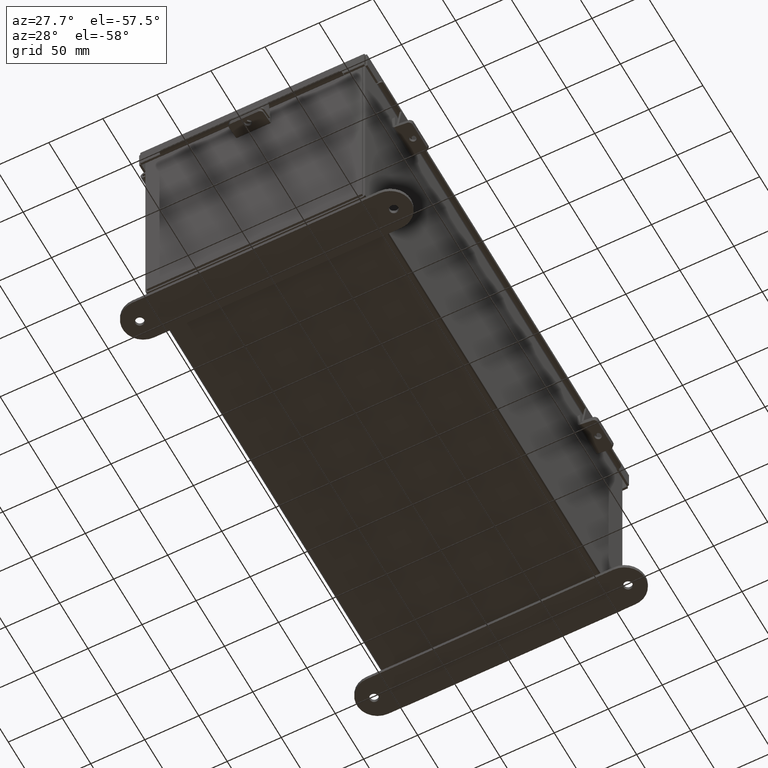
[diagram: clean part render]
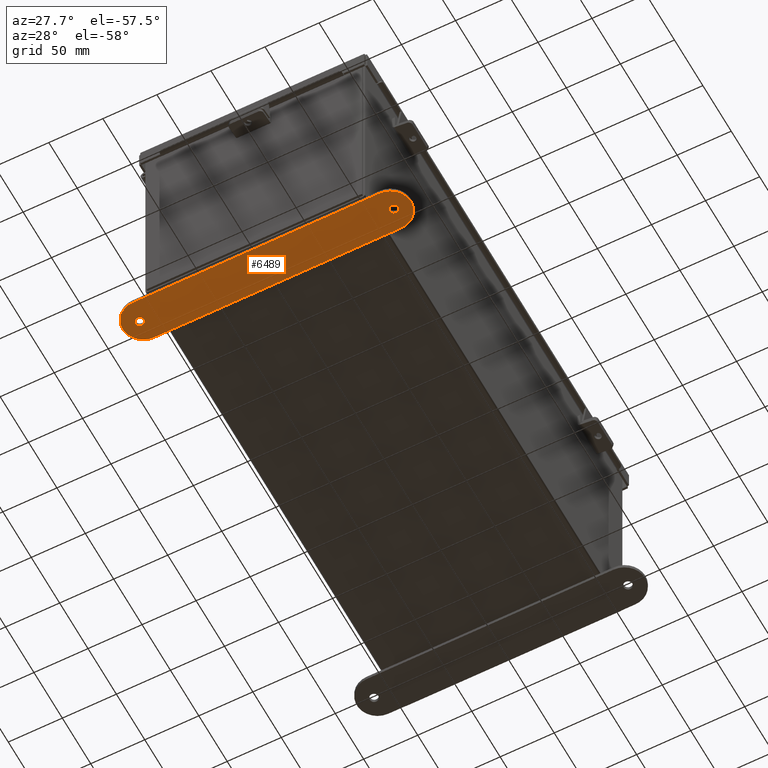
[diagram: same view with one face highlighted and labeled with its STEP entity id]
A machine part, auxiliary view. The second image highlights one B-rep face of the part: STEP entity #6489.
In plain terms, the highlighted planar face has unit normal (0, 0, -1).
Its self-contained STEP definition (entity closure, byte-faithful):
#10 = DIRECTION ( 'NONE',  ( 1.000000000000000000, -1.214154663850783900E-016, 0.0000000000000000000 ) ) ;
#278 = AXIS2_PLACEMENT_3D ( 'NONE', #7970, #18317, #9478 ) ;
#626 = EDGE_CURVE ( 'NONE', #11233, #13737, #1959, .T. ) ;
#697 = CARTESIAN_POINT ( 'NONE',  ( -4.499999999999999100, -0.3379059350503874600, -0.1345000000000000100 ) ) ;
#1493 = PLANE ( 'NONE',  #5875 ) ;
#1553 = CARTESIAN_POINT ( 'NONE',  ( 4.468500000000000600, 0.4120940649496085400, -0.1345000000000000100 ) ) ;
#1632 = VECTOR ( 'NONE', #19097, 39.37007874015748100 ) ;
#1848 = EDGE_LOOP ( 'NONE', ( #13350, #11051 ) ) ;
#1867 = EDGE_LOOP ( 'NONE', ( #13123, #17888 ) ) ;
#1959 = CIRCLE ( 'NONE', #12290, 0.7499999999999998900 ) ;
#2241 = LINE ( 'NONE', #11930, #17083 ) ;
#2310 = EDGE_CURVE ( 'NONE', #7172, #7421, #16281, .T. ) ;
#2825 = CARTESIAN_POINT ( 'NONE',  ( 4.499999999999999100, 0.4120940649496125900, -0.1345000000000000100 ) ) ;
#3051 = DIRECTION ( 'NONE',  ( -0.0000000000000000000, -0.0000000000000000000, -1.000000000000000000 ) ) ;
#3486 = VERTEX_POINT ( 'NONE', #6530 ) ;
#3533 = ORIENTED_EDGE ( 'NONE', *, *, #17594, .F. ) ;
#3641 = CARTESIAN_POINT ( 'NONE',  ( 4.781499999999999400, 0.4120940649496085400, -0.1345000000000000100 ) ) ;
#3853 = DIRECTION ( 'NONE',  ( 0.0000000000000000000, 0.0000000000000000000, 1.000000000000000000 ) ) ;
#4319 = DIRECTION ( 'NONE',  ( -1.000000000000000000, 0.0000000000000000000, 0.0000000000000000000 ) ) ;
#4493 = CARTESIAN_POINT ( 'NONE',  ( 4.499999999999999100, 0.4120940649496125900, -0.1345000000000000100 ) ) ;
#4632 = EDGE_CURVE ( 'NONE', #4880, #11233, #9590, .T. ) ;
#4706 = CARTESIAN_POINT ( 'NONE',  ( -4.499999999999999100, 1.162094064949612300, -0.1345000000000000100 ) ) ;
#4880 = VERTEX_POINT ( 'NONE', #18013 ) ;
#5526 = AXIS2_PLACEMENT_3D ( 'NONE', #6541, #6462, #6342 ) ;
#5875 = AXIS2_PLACEMENT_3D ( 'NONE', #4493, #14876, #5960 ) ;
#5960 = DIRECTION ( 'NONE',  ( -1.000000000000000000, 0.0000000000000000000, 0.0000000000000000000 ) ) ;
#6029 = EDGE_LOOP ( 'NONE', ( #8465, #3533, #9379, #8444, #18136 ) ) ;
#6311 = DIRECTION ( 'NONE',  ( 0.0000000000000000000, 0.0000000000000000000, 1.000000000000000000 ) ) ;
#6342 = DIRECTION ( 'NONE',  ( -1.000000000000000000, 0.0000000000000000000, 0.0000000000000000000 ) ) ;
#6462 = DIRECTION ( 'NONE',  ( -0.0000000000000000000, -0.0000000000000000000, -1.000000000000000000 ) ) ;
#6489 = ADVANCED_FACE ( 'NONE', ( #10446, #17335, #13450 ), #1493, .T. ) ;
#6530 = CARTESIAN_POINT ( 'NONE',  ( -4.781499999999999400, 0.4120940649496085400, -0.1345000000000000100 ) ) ;
#6541 = CARTESIAN_POINT ( 'NONE',  ( 4.625000000000000000, 0.4120940649496085400, -0.1345000000000000100 ) ) ;
#7172 = VERTEX_POINT ( 'NONE', #1553 ) ;
#7421 = VERTEX_POINT ( 'NONE', #3641 ) ;
#7970 = CARTESIAN_POINT ( 'NONE',  ( 4.499999999999999100, 0.4120940649496125900, -0.1345000000000000100 ) ) ;
#7989 = EDGE_CURVE ( 'NONE', #12617, #19240, #11116, .T. ) ;
#8444 = ORIENTED_EDGE ( 'NONE', *, *, #4632, .F. ) ;
#8465 = ORIENTED_EDGE ( 'NONE', *, *, #7989, .F. ) ;
#9379 = ORIENTED_EDGE ( 'NONE', *, *, #626, .F. ) ;
#9478 = DIRECTION ( 'NONE',  ( -1.000000000000000000, 0.0000000000000000000, 0.0000000000000000000 ) ) ;
#9590 = LINE ( 'NONE', #17228, #1632 ) ;
#9605 = CARTESIAN_POINT ( 'NONE',  ( 4.499999999999999100, -0.3379059350503885700, -0.1345000000000000100 ) ) ;
#9781 = EDGE_CURVE ( 'NONE', #7421, #7172, #18146, .T. ) ;
#10369 = CIRCLE ( 'NONE', #13690, 0.7500000000000010000 ) ;
#10446 = FACE_OUTER_BOUND ( 'NONE', #6029, .T. ) ;
#10853 = AXIS2_PLACEMENT_3D ( 'NONE', #12808, #3853, #14255 ) ;
#11051 = ORIENTED_EDGE ( 'NONE', *, *, #11273, .T. ) ;
#11089 = DIRECTION ( 'NONE',  ( 1.000000000000000000, 0.0000000000000000000, 0.0000000000000000000 ) ) ;
#11116 = CIRCLE ( 'NONE', #278, 0.7500000000000010000 ) ;
#11146 = DIRECTION ( 'NONE',  ( 0.0000000000000000000, 0.0000000000000000000, 1.000000000000000000 ) ) ;
#11233 = VERTEX_POINT ( 'NONE', #4706 ) ;
#11271 = CIRCLE ( 'NONE', #10853, 0.1564999999999992800 ) ;
#11273 = EDGE_CURVE ( 'NONE', #3486, #13295, #14195, .T. ) ;
#11277 = CARTESIAN_POINT ( 'NONE',  ( -4.499999999999999100, 0.4120940649496124300, -0.1345000000000000100 ) ) ;
#11499 = EDGE_CURVE ( 'NONE', #13295, #3486, #11271, .T. ) ;
#11930 = CARTESIAN_POINT ( 'NONE',  ( -4.499999999999999100, -0.3379059350503874600, -0.1345000000000000100 ) ) ;
#12028 = CARTESIAN_POINT ( 'NONE',  ( 4.625000000000000000, 0.4120940649496085400, -0.1345000000000000100 ) ) ;
#12225 = EDGE_CURVE ( 'NONE', #19240, #4880, #10369, .T. ) ;
#12290 = AXIS2_PLACEMENT_3D ( 'NONE', #11277, #11146, #11089 ) ;
#12617 = VERTEX_POINT ( 'NONE', #9605 ) ;
#12808 = CARTESIAN_POINT ( 'NONE',  ( -4.625000000000000000, 0.4120940649496085400, -0.1345000000000000100 ) ) ;
#13077 = AXIS2_PLACEMENT_3D ( 'NONE', #12028, #3051, #13464 ) ;
#13123 = ORIENTED_EDGE ( 'NONE', *, *, #9781, .F. ) ;
#13210 = AXIS2_PLACEMENT_3D ( 'NONE', #15225, #6311, #16697 ) ;
#13259 = DIRECTION ( 'NONE',  ( 0.0000000000000000000, 0.0000000000000000000, 1.000000000000000000 ) ) ;
#13295 = VERTEX_POINT ( 'NONE', #14485 ) ;
#13350 = ORIENTED_EDGE ( 'NONE', *, *, #11499, .T. ) ;
#13450 = FACE_BOUND ( 'NONE', #1867, .T. ) ;
#13464 = DIRECTION ( 'NONE',  ( -1.000000000000000000, 0.0000000000000000000, 0.0000000000000000000 ) ) ;
#13690 = AXIS2_PLACEMENT_3D ( 'NONE', #2825, #13259, #4319 ) ;
#13737 = VERTEX_POINT ( 'NONE', #697 ) ;
#14195 = CIRCLE ( 'NONE', #13210, 0.1564999999999992800 ) ;
#14255 = DIRECTION ( 'NONE',  ( -1.000000000000000000, 0.0000000000000000000, 0.0000000000000000000 ) ) ;
#14485 = CARTESIAN_POINT ( 'NONE',  ( -4.468500000000000600, 0.4120940649496085400, -0.1345000000000000100 ) ) ;
#14876 = DIRECTION ( 'NONE',  ( -0.0000000000000000000, 0.0000000000000000000, -1.000000000000000000 ) ) ;
#15209 = CARTESIAN_POINT ( 'NONE',  ( 5.250000000000000900, 0.4120940649496125900, -0.1345000000000000100 ) ) ;
#15225 = CARTESIAN_POINT ( 'NONE',  ( -4.625000000000000000, 0.4120940649496085400, -0.1345000000000000100 ) ) ;
#16281 = CIRCLE ( 'NONE', #5526, 0.1564999999999992800 ) ;
#16697 = DIRECTION ( 'NONE',  ( -1.000000000000000000, 0.0000000000000000000, 0.0000000000000000000 ) ) ;
#17083 = VECTOR ( 'NONE', #10, 39.37007874015748100 ) ;
#17228 = CARTESIAN_POINT ( 'NONE',  ( -4.499999999999999100, 1.162094064949612300, -0.1345000000000000100 ) ) ;
#17335 = FACE_BOUND ( 'NONE', #1848, .T. ) ;
#17594 = EDGE_CURVE ( 'NONE', #13737, #12617, #2241, .T. ) ;
#17888 = ORIENTED_EDGE ( 'NONE', *, *, #2310, .F. ) ;
#18013 = CARTESIAN_POINT ( 'NONE',  ( 4.499999999999999100, 1.162094064949613400, -0.1345000000000000100 ) ) ;
#18136 = ORIENTED_EDGE ( 'NONE', *, *, #12225, .F. ) ;
#18146 = CIRCLE ( 'NONE', #13077, 0.1564999999999992800 ) ;
#18317 = DIRECTION ( 'NONE',  ( 0.0000000000000000000, 0.0000000000000000000, 1.000000000000000000 ) ) ;
#19097 = DIRECTION ( 'NONE',  ( -1.000000000000000000, -1.214154663850783900E-016, -0.0000000000000000000 ) ) ;
#19240 = VERTEX_POINT ( 'NONE', #15209 ) ;